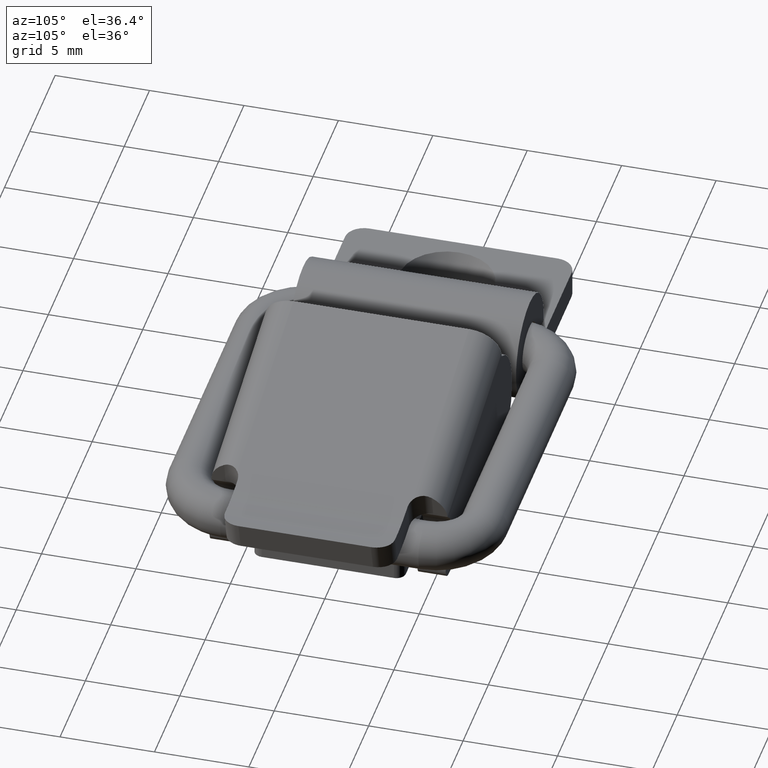
[diagram: clean part render]
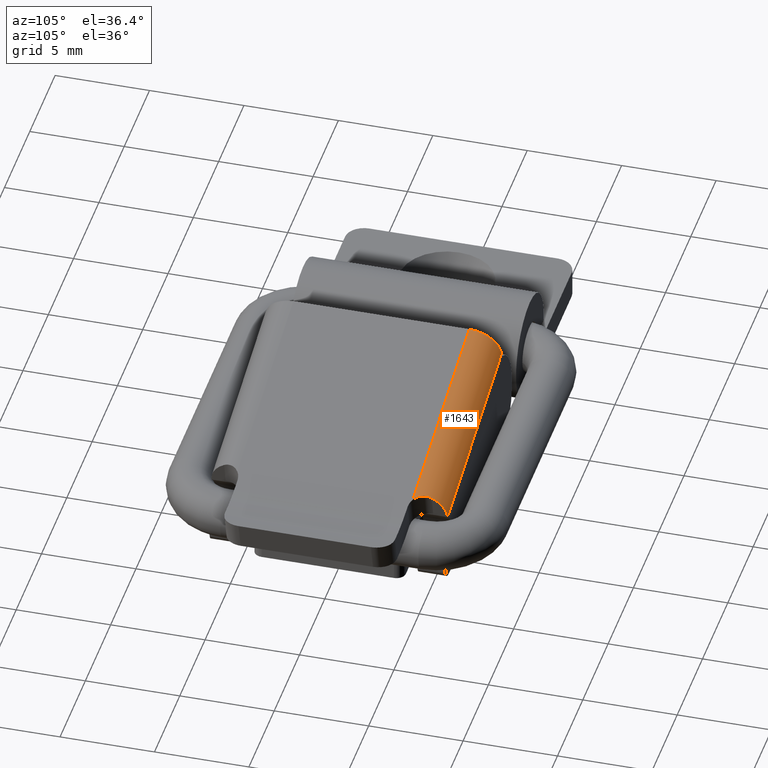
[diagram: same view with one face highlighted and labeled with its STEP entity id]
A machine part, auxiliary view. The second image highlights one B-rep face of the part: STEP entity #1643.
In plain terms, the highlighted cylindrical surface (edge-blend (fillet) strip) has radius 1.6 mm, axis along (-0.967, 0, 0.2547).
Its self-contained STEP definition (entity closure, byte-faithful):
#55=B_SPLINE_CURVE_WITH_KNOTS('',3,(#2732,#2733,#2734,#2735,#2736,#2737,
#2738,#2739,#2740,#2741,#2742,#2743),.UNSPECIFIED.,.F.,.F.,(4,2,2,2,2,4),
(0.794200723340665,0.800256920195488,0.831825329259465,0.860726402777109,
0.889627476294752,0.894732430593527),.UNSPECIFIED.);
#93=LINE('',#2639,#217);
#115=LINE('',#2781,#239);
#217=VECTOR('',#2081,10.9999999999998);
#239=VECTOR('',#2157,11.4682519590572);
#329=CYLINDRICAL_SURFACE('',#1804,1.6);
#478=FACE_OUTER_BOUND('',#596,.T.);
#596=EDGE_LOOP('',(#1338,#1339,#1340,#1341,#1342));
#709=CIRCLE('',#1792,1.6);
#714=CIRCLE('',#1802,1.6);
#808=VERTEX_POINT('',#2627);
#812=VERTEX_POINT('',#2637);
#831=VERTEX_POINT('',#2726);
#833=VERTEX_POINT('',#2730);
#841=VERTEX_POINT('',#2780);
#980=EDGE_CURVE('',#812,#808,#93,.T.);
#1008=EDGE_CURVE('',#831,#833,#55,.F.);
#1011=EDGE_CURVE('',#833,#808,#709,.T.);
#1022=EDGE_CURVE('',#831,#841,#115,.T.);
#1025=EDGE_CURVE('',#812,#841,#714,.T.);
#1338=ORIENTED_EDGE('',*,*,#1011,.T.);
#1339=ORIENTED_EDGE('',*,*,#980,.F.);
#1340=ORIENTED_EDGE('',*,*,#1025,.T.);
#1341=ORIENTED_EDGE('',*,*,#1022,.F.);
#1342=ORIENTED_EDGE('',*,*,#1008,.T.);
#1643=ADVANCED_FACE('',(#478),#329,.T.);
#1792=AXIS2_PLACEMENT_3D('',#2748,#2134,#2135);
#1802=AXIS2_PLACEMENT_3D('',#2786,#2162,#2163);
#1804=AXIS2_PLACEMENT_3D('',#2792,#2168,#2169);
#2081=DIRECTION('',(1.,-2.01858731750029E-16,0.));
#2134=DIRECTION('center_axis',(-1.,6.48109905916855E-16,4.66610626752748E-16));
#2135=DIRECTION('ref_axis',(0.,-2.32569456138133E-15,1.));
#2157=DIRECTION('',(-1.,2.01858731750029E-16,0.));
#2162=DIRECTION('center_axis',(1.,-1.01899194948468E-15,4.66520065575222E-14));
#2163=DIRECTION('ref_axis',(0.,-2.32569456138133E-15,1.));
#2168=DIRECTION('center_axis',(-1.,2.01858731750029E-16,0.));
#2169=DIRECTION('ref_axis',(0.,-2.32569456138133E-15,1.));
#2627=CARTESIAN_POINT('',(4.9,6.25309739581794,-0.100000000000001));
#2637=CARTESIAN_POINT('',(-6.09999999999981,6.25309739581794,-0.100000000000001));
#2639=CARTESIAN_POINT('',(-0.310683967346165,6.25309739581794,-0.100000000000001));
#2726=CARTESIAN_POINT('',(5.36825195905734,4.6530973958278,1.5));
#2730=CARTESIAN_POINT('',(4.89999999999999,5.5,1.25748148386254));
#2732=CARTESIAN_POINT('Ctrl Pts',(4.89999999999999,5.5,1.25748148386254));
#2733=CARTESIAN_POINT('Ctrl Pts',(4.89999999999999,5.48162500189783,1.26894523782867));
#2734=CARTESIAN_POINT('Ctrl Pts',(4.90050752897733,5.4629889447981,1.28005220924409));
#2735=CARTESIAN_POINT('Ctrl Pts',(4.90704207064036,5.34611448571664,1.34653196709946));
#2736=CARTESIAN_POINT('Ctrl Pts',(4.92839362674947,5.24287785287299,1.39063117416536));
#2737=CARTESIAN_POINT('Ctrl Pts',(4.99613469567358,5.06237160767513,1.44942801799524));
#2738=CARTESIAN_POINT('Ctrl Pts',(5.04472906189271,4.97175672546738,1.47010247395875));
#2739=CARTESIAN_POINT('Ctrl Pts',(5.1698316045168,4.80907055522487,1.49450239874371));
#2740=CARTESIAN_POINT('Ctrl Pts',(5.24635633160097,4.73709124143393,1.49875332799539));
#2741=CARTESIAN_POINT('Ctrl Pts',(5.3391064877308,4.67193720103263,1.49991898472961));
#2742=CARTESIAN_POINT('Ctrl Pts',(5.35347616877015,4.66237472889997,1.49999999999994));
#2743=CARTESIAN_POINT('Ctrl Pts',(5.36825195905734,4.6530973958278,1.5));
#2748=CARTESIAN_POINT('Origin',(4.89999999999999,4.65309739581794,-0.1));
#2780=CARTESIAN_POINT('',(-6.09999999999983,4.65309739581794,1.5));
#2781=CARTESIAN_POINT('',(5.18931603265373,4.65309739581794,1.5));
#2786=CARTESIAN_POINT('Origin',(-6.0999999999998,4.65309739581794,-0.1));
#2792=CARTESIAN_POINT('Origin',(-0.599999999999916,4.65309739581794,-0.1));